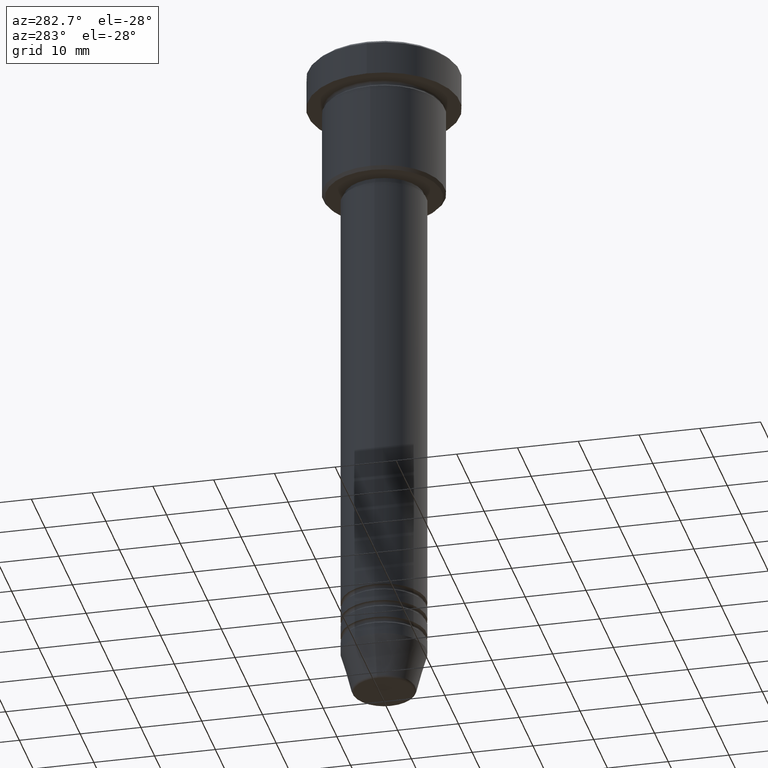
[diagram: clean part render]
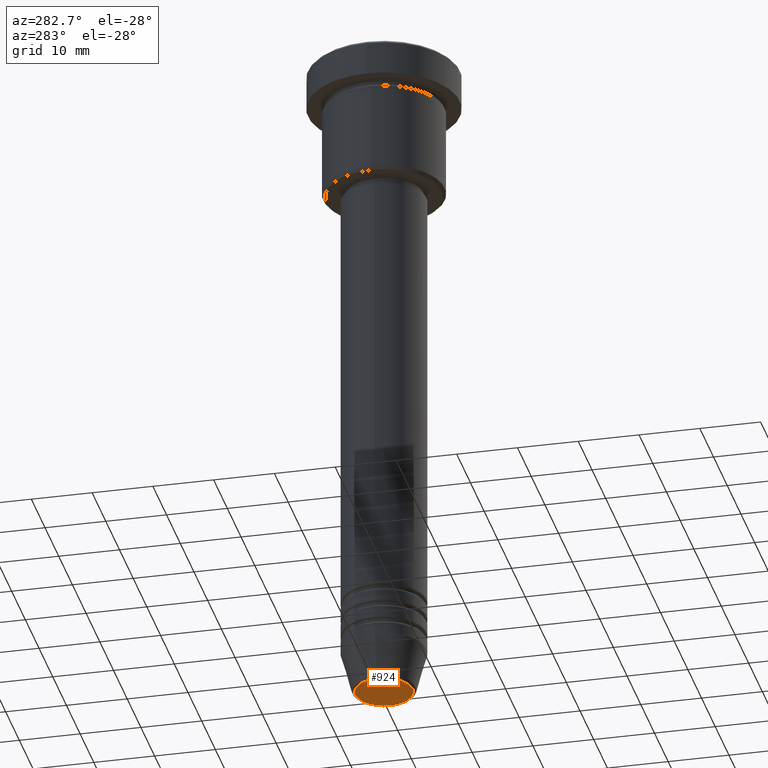
[diagram: same view with one face highlighted and labeled with its STEP entity id]
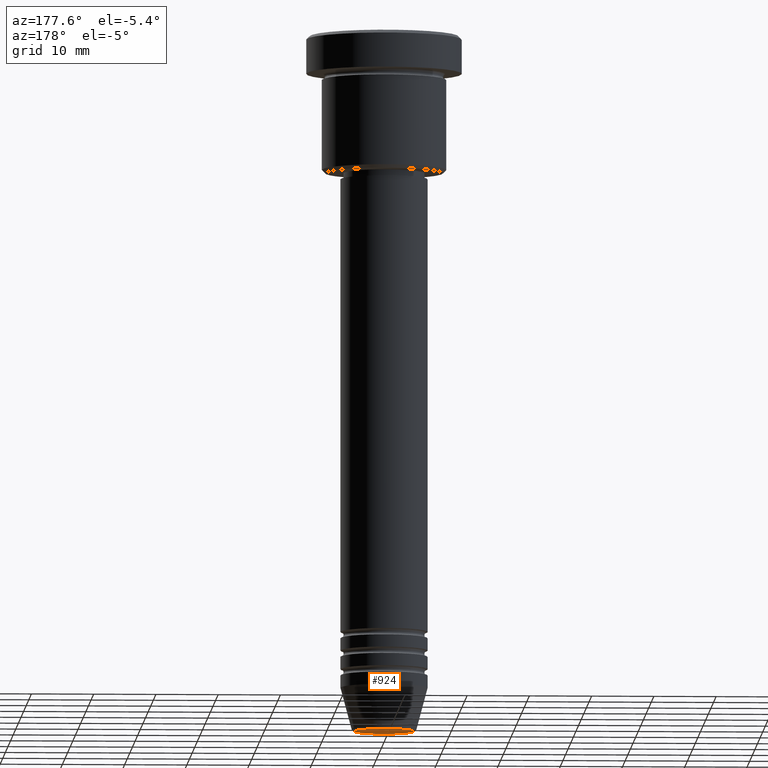
[diagram: same view with one face highlighted and labeled with its STEP entity id]
A machine part, auxiliary view. The second image highlights one B-rep face of the part: STEP entity #924.
A second angle (auxiliary view) of the same face is appended — the face is thin or edge-on in the first view.
In plain terms, the highlighted planar face has unit normal (0, -0, 1).
Its self-contained STEP definition (entity closure, byte-faithful):
#131 = ORIENTED_EDGE ( 'NONE', *, *, #530, .T. ) ;
#156 = CARTESIAN_POINT ( 'NONE',  ( 0.000000000000000000, 0.000000000000000000, -112.0000000000000000 ) ) ;
#220 = CARTESIAN_POINT ( 'NONE',  ( 0.000000000000000000, 0.000000000000000000, -112.0000000000000000 ) ) ;
#343 = DIRECTION ( 'NONE',  ( 1.000000000000000000, 0.000000000000000000, 0.000000000000000000 ) ) ;
#355 = EDGE_CURVE ( 'NONE', #845, #605, #811, .T. ) ;
#373 = CIRCLE ( 'NONE', #693, 4.740692158992659166 ) ;
#399 = PLANE ( 'NONE',  #453 ) ;
#407 = DIRECTION ( 'NONE',  ( 0.000000000000000000, 0.000000000000000000, -1.000000000000000000 ) ) ;
#430 = DIRECTION ( 'NONE',  ( 0.000000000000000000, -0.000000000000000000, 1.000000000000000000 ) ) ;
#453 = AXIS2_PLACEMENT_3D ( 'NONE', #156, #430, #343 ) ;
#471 = AXIS2_PLACEMENT_3D ( 'NONE', #220, #407, #1048 ) ;
#530 = EDGE_CURVE ( 'NONE', #605, #845, #373, .T. ) ;
#537 = EDGE_LOOP ( 'NONE', ( #131, #705 ) ) ;
#605 = VERTEX_POINT ( 'NONE', #762 ) ;
#614 = DIRECTION ( 'NONE',  ( 0.000000000000000000, 0.000000000000000000, -1.000000000000000000 ) ) ;
#693 = AXIS2_PLACEMENT_3D ( 'NONE', #1095, #614, #982 ) ;
#705 = ORIENTED_EDGE ( 'NONE', *, *, #355, .T. ) ;
#762 = CARTESIAN_POINT ( 'NONE',  ( 4.740692158992659166, 0.000000000000000000, -112.0000000000000000 ) ) ;
#811 = CIRCLE ( 'NONE', #471, 4.740692158992659166 ) ;
#845 = VERTEX_POINT ( 'NONE', #939 ) ;
#924 = ADVANCED_FACE ( 'NONE', ( #931 ), #399, .F. ) ;
#931 = FACE_OUTER_BOUND ( 'NONE', #537, .T. ) ;
#939 = CARTESIAN_POINT ( 'NONE',  ( -4.740692158992659166, 6.101402971097984690E-16, -112.0000000000000000 ) ) ;
#982 = DIRECTION ( 'NONE',  ( 1.000000000000000000, 0.000000000000000000, 0.000000000000000000 ) ) ;
#1048 = DIRECTION ( 'NONE',  ( 1.000000000000000000, 0.000000000000000000, 0.000000000000000000 ) ) ;
#1095 = CARTESIAN_POINT ( 'NONE',  ( 0.000000000000000000, 0.000000000000000000, -112.0000000000000000 ) ) ;